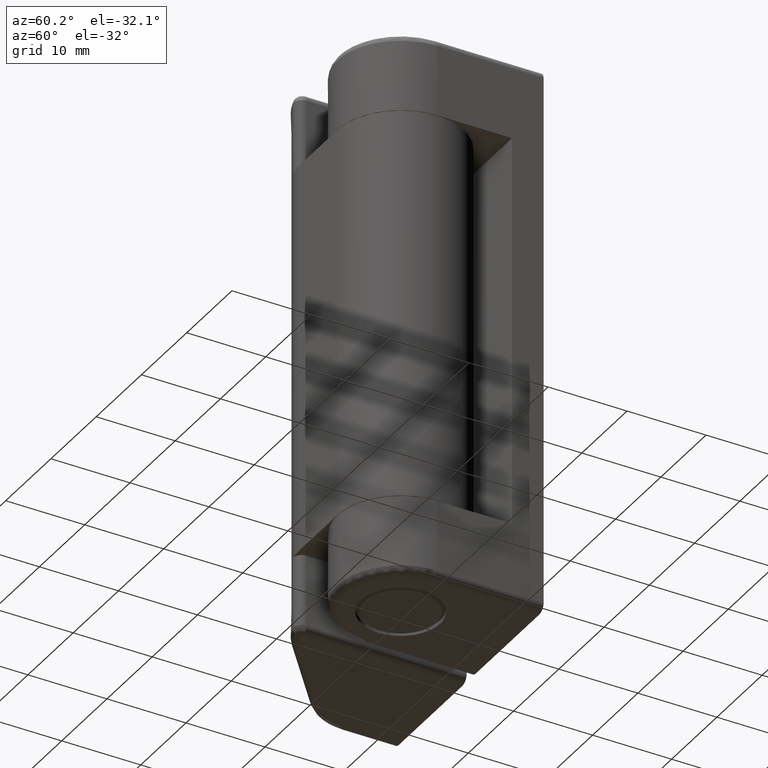
[diagram: clean part render]
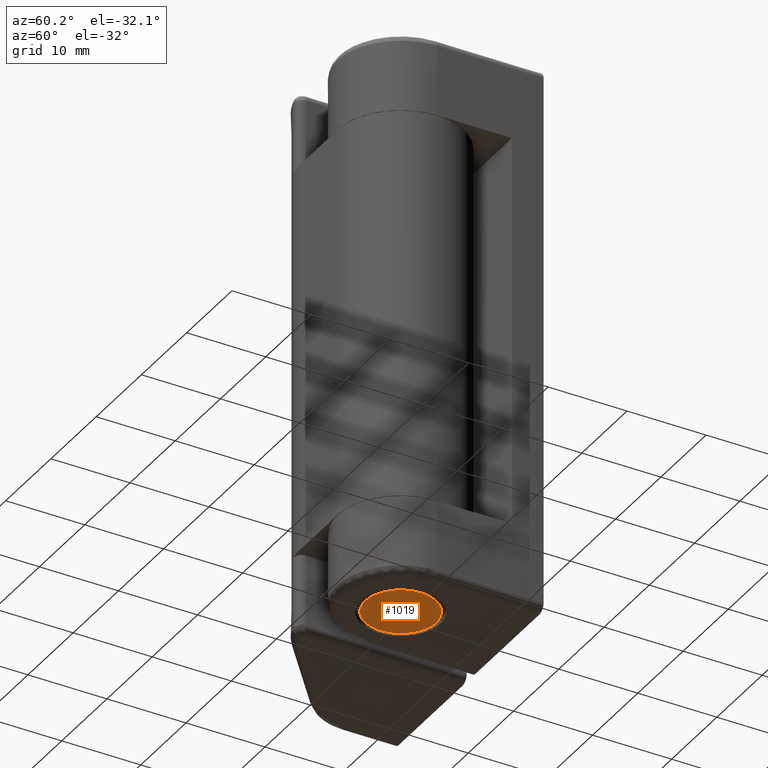
[diagram: same view with one face highlighted and labeled with its STEP entity id]
A machine part, auxiliary view. The second image highlights one B-rep face of the part: STEP entity #1019.
In plain terms, the highlighted face is a freeform B-spline surface patch.
Its self-contained STEP definition (entity closure, byte-faithful):
#303=CARTESIAN_POINT('',(-4.383981689260581,1.015236203361323,4.306378E-011));
#304=VERTEX_POINT('',#303);
#310=CARTESIAN_POINT('',(-4.500000000000000,0.0,0.0));
#311=VERTEX_POINT('',#310);
#312=CARTESIAN_POINT('',(-4.500000000000000,0.0,0.0));
#313=CARTESIAN_POINT('',(-4.500000000000000,0.514247223440660,0.0));
#314=CARTESIAN_POINT('',(-4.383981689260581,1.015236203361323,4.306378E-011));
#322=(BOUNDED_CURVE()B_SPLINE_CURVE(2,(#312,#313,#314),.UNSPECIFIED.,.F.,.U.)B_SPLINE_CURVE_WITH_KNOTS((3,3),(0.0,0.038577028242740),.UNSPECIFIED.)CURVE()GEOMETRIC_REPRESENTATION_ITEM()RATIONAL_B_SPLINE_CURVE((1.0,0.954804200102905,0.923556557398478))REPRESENTATION_ITEM(''));
#323=EDGE_CURVE('',#311,#304,#322,.T.);
#325=CARTESIAN_POINT('',(4.500000000000000,0.0,0.0));
#326=VERTEX_POINT('',#325);
#327=CARTESIAN_POINT('',(4.500000000000000,0.0,0.0));
#328=CARTESIAN_POINT('',(4.500000000000000,-4.500000000000000,0.0));
#329=CARTESIAN_POINT('',(0.0,-4.500000000000000,0.0));
#330=CARTESIAN_POINT('',(-4.500000000000000,-4.500000000000000,0.0));
#331=CARTESIAN_POINT('',(-4.500000000000000,0.0,0.0));
#339=(BOUNDED_CURVE()B_SPLINE_CURVE(2,(#327,#328,#329,#330,#331),.UNSPECIFIED.,.F.,.U.)B_SPLINE_CURVE_WITH_KNOTS((3,2,3),(0.500000000000000,0.750000000000000,1.0),.UNSPECIFIED.)CURVE()GEOMETRIC_REPRESENTATION_ITEM()RATIONAL_B_SPLINE_CURVE((1.0,0.707106781186547,1.0,0.707106781186547,1.0))REPRESENTATION_ITEM(''));
#340=EDGE_CURVE('',#326,#311,#339,.T.);
#342=CARTESIAN_POINT('',(-0.039269410286827,4.499828653858135,7.411007E-011));
#343=VERTEX_POINT('',#342);
#344=CARTESIAN_POINT('',(-0.039269410286827,4.499828653858135,7.411007E-011));
#345=CARTESIAN_POINT('',(-0.019635079236686,4.500000000000001,0.0));
#346=CARTESIAN_POINT('',(0.0,4.500000000000000,0.0));
#347=CARTESIAN_POINT('',(4.500000000000000,4.500000000000000,0.0));
#348=CARTESIAN_POINT('',(4.500000000000000,0.0,0.0));
#356=(BOUNDED_CURVE()B_SPLINE_CURVE(2,(#344,#345,#346,#347,#348),.UNSPECIFIED.,.F.,.U.)B_SPLINE_CURVE_WITH_KNOTS((3,2,3),(0.248460105622463,0.250000000000000,0.500000000000000),.UNSPECIFIED.)CURVE()GEOMETRIC_REPRESENTATION_ITEM()RATIONAL_B_SPLINE_CURVE((0.996414028001934,0.998195901516522,1.0,0.707106781186547,1.0))REPRESENTATION_ITEM(''));
#357=EDGE_CURVE('',#343,#326,#356,.T.);
#459=CARTESIAN_POINT('',(-4.383981689260581,1.015236203361323,4.306378E-011));
#460=CARTESIAN_POINT('',(-3.584188882766354,4.468892609362416,0.0));
#461=CARTESIAN_POINT('',(-0.039269410286827,4.499828653858135,7.411007E-011));
#469=(BOUNDED_CURVE()B_SPLINE_CURVE(2,(#459,#460,#461),.UNSPECIFIED.,.F.,.U.)B_SPLINE_CURVE_WITH_KNOTS((3,3),(0.038577028242740,0.248460105622463),.UNSPECIFIED.)CURVE()GEOMETRIC_REPRESENTATION_ITEM()RATIONAL_B_SPLINE_CURVE((0.923556557398478,0.753549905501922,0.996414028001934))REPRESENTATION_ITEM(''));
#470=EDGE_CURVE('',#304,#343,#469,.T.);
#1008=CARTESIAN_POINT('',(4.949549982556253,-4.949541429506616,0.0));
#1009=CARTESIAN_POINT('',(-4.949550223955065,-4.949541429506616,0.0));
#1010=CARTESIAN_POINT('',(4.949549982556253,4.949370438681917,0.0));
#1011=CARTESIAN_POINT('',(-4.949550223955065,4.949370438681917,0.0));
#1012=B_SPLINE_SURFACE_WITH_KNOTS('',1,1,((#1008,#1010),(#1009,#1011)),.UNSPECIFIED.,.F.,.F.,.U.,(2,2),(2,2),(0.0,9.899100206511317),(0.0,9.898911868188533),.UNSPECIFIED.);
#1013=ORIENTED_EDGE('',*,*,#323,.T.);
#1014=ORIENTED_EDGE('',*,*,#470,.T.);
#1015=ORIENTED_EDGE('',*,*,#357,.T.);
#1016=ORIENTED_EDGE('',*,*,#340,.T.);
#1017=EDGE_LOOP('',(#1013,#1014,#1015,#1016));
#1018=FACE_OUTER_BOUND('',#1017,.T.);
#1019=ADVANCED_FACE('',(#1018),#1012,.T.);